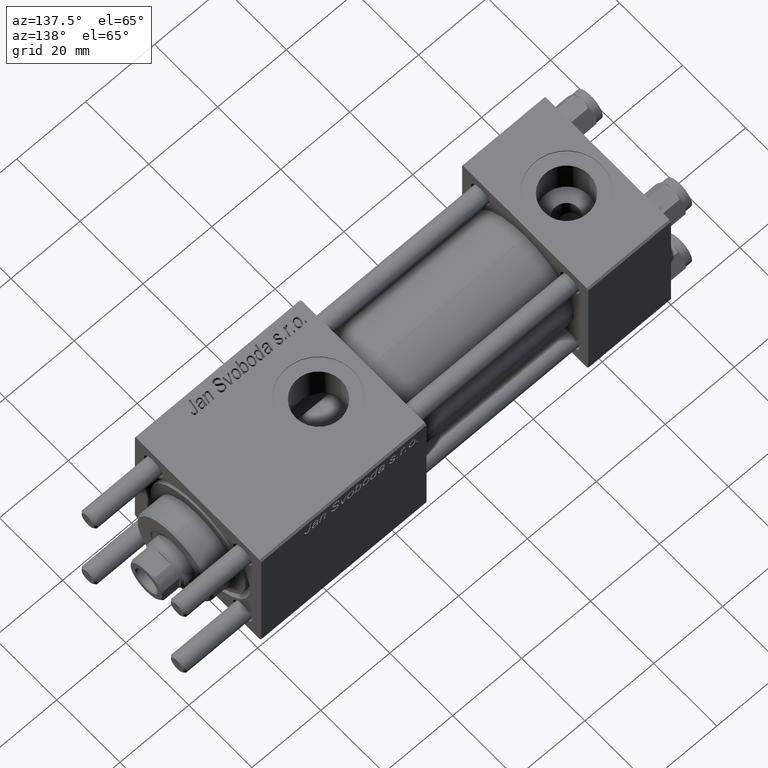
[diagram: clean part render]
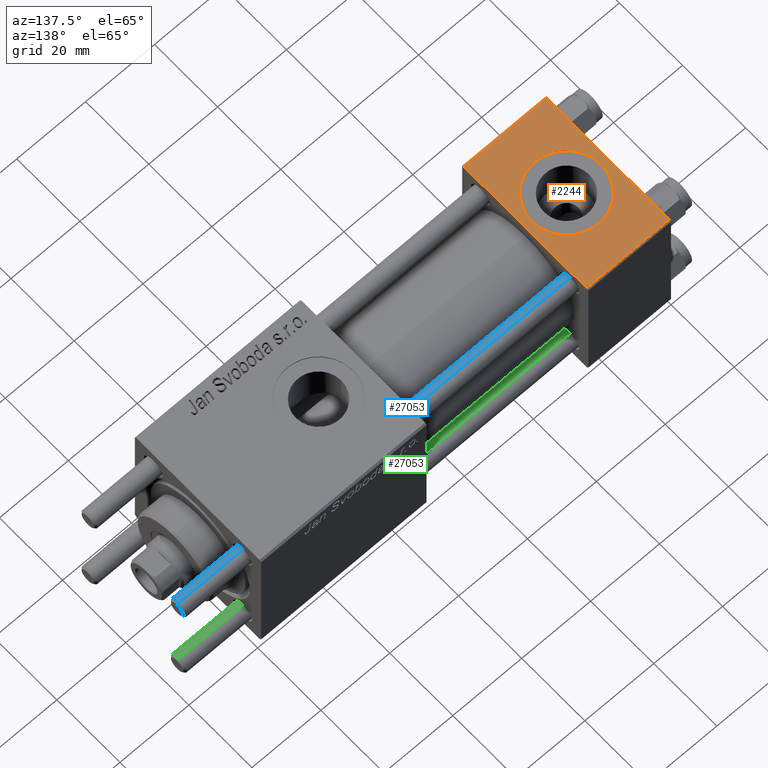
[diagram: same view with three faces highlighted in distinct colors, each labeled with its STEP entity id]
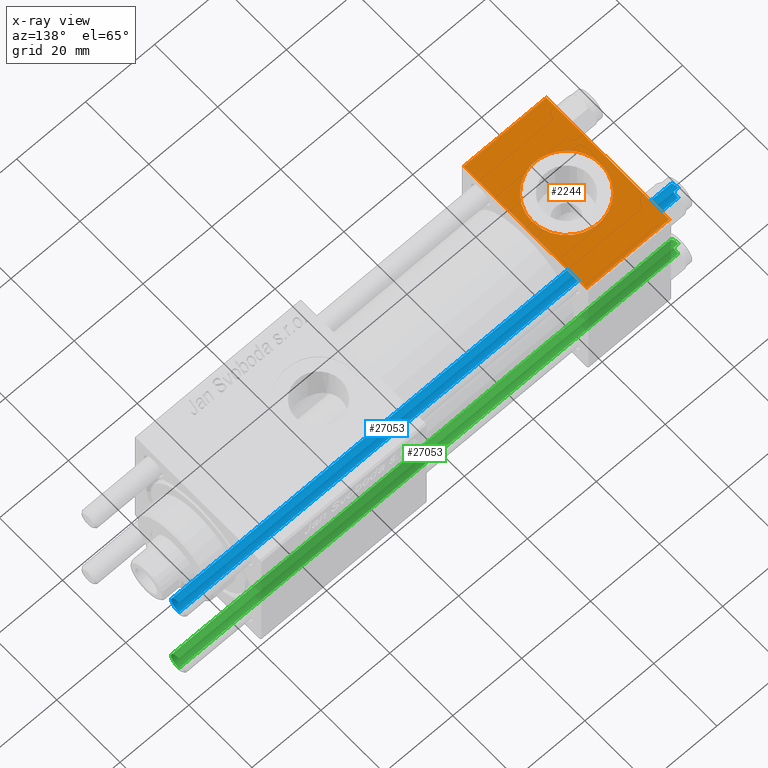
[diagram: x-ray of the same camera — body ghosted, the three highlighted faces saturated]
A machine part, auxiliary view with three faces highlighted in distinct colors.
The next image is the same camera in x-ray (body ghosted, the three faces saturated) — at least one of them is partly hidden behind the body in this view.
Their STEP definitions:

[orange] entity #2244 — the highlighted planar face has unit normal (0, 0, -1).
#2244 = ADVANCED_FACE ( 'NONE', ( #21474, #38375 ), #24639, .F. ) ;
#2397 = CIRCLE ( 'NONE', #10640, 9.999999999999998224 ) ;
#4580 = EDGE_LOOP ( 'NONE', ( #13665, #24686 ) ) ;
#5987 = VERTEX_POINT ( 'NONE', #19932 ) ;
#6838 = ORIENTED_EDGE ( 'NONE', *, *, #27713, .T. ) ;
#7768 = DIRECTION ( 'NONE',  ( 1.000000000000000000, 0.000000000000000000, 0.000000000000000000 ) ) ;
#8727 = VERTEX_POINT ( 'NONE', #10814 ) ;
#8964 = VERTEX_POINT ( 'NONE', #15040 ) ;
#9072 = CARTESIAN_POINT ( 'NONE',  ( 0.000000000000000000, 20.00000000000000000, 20.00000000000000000 ) ) ;
#9590 = CIRCLE ( 'NONE', #41621, 9.999999999999998224 ) ;
#9744 = ORIENTED_EDGE ( 'NONE', *, *, #50889, .F. ) ;
#10640 = AXIS2_PLACEMENT_3D ( 'NONE', #50797, #33565, #7768 ) ;
#10814 = CARTESIAN_POINT ( 'NONE',  ( 24.00000000000000000, -19.49999999999999289, 19.99999999999998934 ) ) ;
#11984 = VERTEX_POINT ( 'NONE', #27802 ) ;
#12292 = CARTESIAN_POINT ( 'NONE',  ( 24.00000000000000000, 20.00000000000000000, 20.00000000000000000 ) ) ;
#12521 = DIRECTION ( 'NONE',  ( 0.000000000000000000, 0.000000000000000000, 1.000000000000000000 ) ) ;
#13026 = CARTESIAN_POINT ( 'NONE',  ( 24.00000000000000000, -19.49999999999999289, 19.99999999999998934 ) ) ;
#13665 = ORIENTED_EDGE ( 'NONE', *, *, #44740, .F. ) ;
#14174 = DIRECTION ( 'NONE',  ( 1.000000000000000000, 0.000000000000000000, 0.000000000000000000 ) ) ;
#14754 = VERTEX_POINT ( 'NONE', #46470 ) ;
#15016 = VECTOR ( 'NONE', #14174, 1000.000000000000000 ) ;
#15040 = CARTESIAN_POINT ( 'NONE',  ( 0.000000000000000000, -19.49999999999999289, 19.99999999999998934 ) ) ;
#15137 = VECTOR ( 'NONE', #16055, 1000.000000000000000 ) ;
#15537 = CARTESIAN_POINT ( 'NONE',  ( 0.000000000000000000, 19.50000000000000000, 20.00000000000000000 ) ) ;
#16055 = DIRECTION ( 'NONE',  ( -1.000000000000000000, 0.000000000000000000, 0.000000000000000000 ) ) ;
#17391 = DIRECTION ( 'NONE',  ( 1.000000000000000000, 0.000000000000000000, 0.000000000000000000 ) ) ;
#19932 = CARTESIAN_POINT ( 'NONE',  ( 22.00000000000000000, 1.540743955509788682E-30, 19.99999999999999645 ) ) ;
#21474 = FACE_BOUND ( 'NONE', #4580, .T. ) ;
#23975 = EDGE_LOOP ( 'NONE', ( #26039, #6838, #9744, #50352 ) ) ;
#24639 = PLANE ( 'NONE',  #50373 ) ;
#24686 = ORIENTED_EDGE ( 'NONE', *, *, #55804, .F. ) ;
#26039 = ORIENTED_EDGE ( 'NONE', *, *, #27438, .T. ) ;
#26565 = LINE ( 'NONE', #9072, #55310 ) ;
#27438 = EDGE_CURVE ( 'NONE', #31375, #8964, #26565, .T. ) ;
#27713 = EDGE_CURVE ( 'NONE', #8964, #8727, #53190, .T. ) ;
#27802 = CARTESIAN_POINT ( 'NONE',  ( 24.00000000000000000, 19.50000000000000000, 20.00000000000000000 ) ) ;
#31375 = VERTEX_POINT ( 'NONE', #15537 ) ;
#33565 = DIRECTION ( 'NONE',  ( 0.000000000000000000, 0.000000000000000000, 1.000000000000000000 ) ) ;
#34070 = CARTESIAN_POINT ( 'NONE',  ( 24.00000000000000000, 20.00000000000000000, 20.00000000000000000 ) ) ;
#37551 = CARTESIAN_POINT ( 'NONE',  ( 0.000000000000000000, 19.50000000000000000, 20.00000000000000000 ) ) ;
#37954 = VECTOR ( 'NONE', #55621, 1000.000000000000000 ) ;
#38375 = FACE_OUTER_BOUND ( 'NONE', #23975, .T. ) ;
#38948 = LINE ( 'NONE', #12292, #37954 ) ;
#41621 = AXIS2_PLACEMENT_3D ( 'NONE', #56692, #12521, #17391 ) ;
#42135 = DIRECTION ( 'NONE',  ( 0.000000000000000000, 2.602085213965210149E-16, -1.000000000000000000 ) ) ;
#44740 = EDGE_CURVE ( 'NONE', #5987, #14754, #9590, .T. ) ;
#46470 = CARTESIAN_POINT ( 'NONE',  ( 2.000000000000003553, 1.224646799147354440E-15, 19.99999999999999645 ) ) ;
#47293 = DIRECTION ( 'NONE',  ( 0.000000000000000000, 1.000000000000000000, 2.602085213965210149E-16 ) ) ;
#50352 = ORIENTED_EDGE ( 'NONE', *, *, #52508, .T. ) ;
#50373 = AXIS2_PLACEMENT_3D ( 'NONE', #34070, #42135, #47293 ) ;
#50797 = CARTESIAN_POINT ( 'NONE',  ( 12.00000000000000000, 1.540743955509788682E-30, 19.99999999999999645 ) ) ;
#50889 = EDGE_CURVE ( 'NONE', #11984, #8727, #38948, .T. ) ;
#52508 = EDGE_CURVE ( 'NONE', #11984, #31375, #55359, .T. ) ;
#53190 = LINE ( 'NONE', #13026, #15016 ) ;
#53255 = DIRECTION ( 'NONE',  ( 0.000000000000000000, -1.000000000000000000, -2.602085213965210149E-16 ) ) ;
#55310 = VECTOR ( 'NONE', #53255, 1000.000000000000000 ) ;
#55359 = LINE ( 'NONE', #37551, #15137 ) ;
#55621 = DIRECTION ( 'NONE',  ( 0.000000000000000000, -1.000000000000000000, -2.602085213965210149E-16 ) ) ;
#55804 = EDGE_CURVE ( 'NONE', #14754, #5987, #2397, .T. ) ;
#56692 = CARTESIAN_POINT ( 'NONE',  ( 12.00000000000000000, 1.540743955509788682E-30, 19.99999999999999645 ) ) ;

[blue] entity #27053 — the highlighted cylindrical surface (edge-blend (fillet) strip) has radius 2.5 mm, axis along (1, -0, -0).
#701 = DIRECTION ( 'NONE',  ( -0.000000000000000000, -0.000000000000000000, 1.000000000000000000 ) ) ;
#874 = CARTESIAN_POINT ( 'NONE',  ( 2.500000000000000000, 3.061616997868383141E-16, 145.5000000000000284 ) ) ;
#2077 = CARTESIAN_POINT ( 'NONE',  ( 2.500000000000000000, 3.061616997868383141E-16, 0.5000000000000559552 ) ) ;
#2105 = DIRECTION ( 'NONE',  ( -0.000000000000000000, -0.000000000000000000, -1.000000000000000000 ) ) ;
#7794 = CARTESIAN_POINT ( 'NONE',  ( 0.000000000000000000, 0.000000000000000000, 146.0000000000000000 ) ) ;
#8441 = DIRECTION ( 'NONE',  ( 1.000000000000000000, 0.000000000000000000, 0.000000000000000000 ) ) ;
#9804 = ORIENTED_EDGE ( 'NONE', *, *, #49978, .T. ) ;
#14050 = AXIS2_PLACEMENT_3D ( 'NONE', #7794, #43071, #25296 ) ;
#14218 = AXIS2_PLACEMENT_3D ( 'NONE', #30508, #701, #8441 ) ;
#14284 = CARTESIAN_POINT ( 'NONE',  ( 2.500000000000000000, 3.061616997868383141E-16, 146.0000000000000000 ) ) ;
#15278 = DIRECTION ( 'NONE',  ( 0.000000000000000000, 0.000000000000000000, -1.000000000000000000 ) ) ;
#15631 = VECTOR ( 'NONE', #2105, 1000.000000000000000 ) ;
#15720 = VERTEX_POINT ( 'NONE', #55301 ) ;
#16893 = AXIS2_PLACEMENT_3D ( 'NONE', #22264, #15278, #50261 ) ;
#18523 = EDGE_CURVE ( 'NONE', #45059, #15720, #45158, .T. ) ;
#20367 = CARTESIAN_POINT ( 'NONE',  ( -2.500000000000000000, 0.000000000000000000, 145.5000000000000284 ) ) ;
#20719 = FACE_OUTER_BOUND ( 'NONE', #53543, .T. ) ;
#22264 = CARTESIAN_POINT ( 'NONE',  ( 0.000000000000000000, 0.000000000000000000, 145.5000000000000284 ) ) ;
#23447 = LINE ( 'NONE', #14284, #25047 ) ;
#24961 = VERTEX_POINT ( 'NONE', #874 ) ;
#25047 = VECTOR ( 'NONE', #40367, 1000.000000000000000 ) ;
#25296 = DIRECTION ( 'NONE',  ( -1.000000000000000000, 0.000000000000000000, 0.000000000000000000 ) ) ;
#27053 = ADVANCED_FACE ( 'NONE', ( #20719 ), #46243, .T. ) ;
#30508 = CARTESIAN_POINT ( 'NONE',  ( 0.000000000000000000, 0.000000000000000000, 0.5000000000000559552 ) ) ;
#30590 = EDGE_CURVE ( 'NONE', #24961, #49937, #23447, .T. ) ;
#31941 = CARTESIAN_POINT ( 'NONE',  ( -2.500000000000000000, 0.000000000000000000, 146.0000000000000000 ) ) ;
#34315 = CIRCLE ( 'NONE', #14218, 2.500000000000000000 ) ;
#40367 = DIRECTION ( 'NONE',  ( -0.000000000000000000, -0.000000000000000000, -1.000000000000000000 ) ) ;
#43071 = DIRECTION ( 'NONE',  ( -0.000000000000000000, -0.000000000000000000, -1.000000000000000000 ) ) ;
#45059 = VERTEX_POINT ( 'NONE', #20367 ) ;
#45158 = LINE ( 'NONE', #31941, #15631 ) ;
#46137 = EDGE_CURVE ( 'NONE', #15720, #49937, #34315, .T. ) ;
#46168 = CIRCLE ( 'NONE', #16893, 2.500000000000000000 ) ;
#46243 = CYLINDRICAL_SURFACE ( 'NONE', #14050, 2.500000000000000000 ) ;
#49937 = VERTEX_POINT ( 'NONE', #2077 ) ;
#49978 = EDGE_CURVE ( 'NONE', #24961, #45059, #46168, .T. ) ;
#50261 = DIRECTION ( 'NONE',  ( 1.000000000000000000, 0.000000000000000000, 0.000000000000000000 ) ) ;
#53326 = ORIENTED_EDGE ( 'NONE', *, *, #30590, .F. ) ;
#53543 = EDGE_LOOP ( 'NONE', ( #53326, #9804, #56008, #53916 ) ) ;
#53916 = ORIENTED_EDGE ( 'NONE', *, *, #46137, .T. ) ;
#55301 = CARTESIAN_POINT ( 'NONE',  ( -2.500000000000000000, 0.000000000000000000, 0.5000000000000559552 ) ) ;
#56008 = ORIENTED_EDGE ( 'NONE', *, *, #18523, .T. ) ;

[green] entity #27053 — the highlighted cylindrical surface (edge-blend (fillet) strip) has radius 2.5 mm, axis along (-1, -0, 0).
#701 = DIRECTION ( 'NONE',  ( -0.000000000000000000, -0.000000000000000000, 1.000000000000000000 ) ) ;
#874 = CARTESIAN_POINT ( 'NONE',  ( 2.500000000000000000, 3.061616997868383141E-16, 145.5000000000000284 ) ) ;
#2077 = CARTESIAN_POINT ( 'NONE',  ( 2.500000000000000000, 3.061616997868383141E-16, 0.5000000000000559552 ) ) ;
#2105 = DIRECTION ( 'NONE',  ( -0.000000000000000000, -0.000000000000000000, -1.000000000000000000 ) ) ;
#7794 = CARTESIAN_POINT ( 'NONE',  ( 0.000000000000000000, 0.000000000000000000, 146.0000000000000000 ) ) ;
#8441 = DIRECTION ( 'NONE',  ( 1.000000000000000000, 0.000000000000000000, 0.000000000000000000 ) ) ;
#9804 = ORIENTED_EDGE ( 'NONE', *, *, #49978, .T. ) ;
#14050 = AXIS2_PLACEMENT_3D ( 'NONE', #7794, #43071, #25296 ) ;
#14218 = AXIS2_PLACEMENT_3D ( 'NONE', #30508, #701, #8441 ) ;
#14284 = CARTESIAN_POINT ( 'NONE',  ( 2.500000000000000000, 3.061616997868383141E-16, 146.0000000000000000 ) ) ;
#15278 = DIRECTION ( 'NONE',  ( 0.000000000000000000, 0.000000000000000000, -1.000000000000000000 ) ) ;
#15631 = VECTOR ( 'NONE', #2105, 1000.000000000000000 ) ;
#15720 = VERTEX_POINT ( 'NONE', #55301 ) ;
#16893 = AXIS2_PLACEMENT_3D ( 'NONE', #22264, #15278, #50261 ) ;
#18523 = EDGE_CURVE ( 'NONE', #45059, #15720, #45158, .T. ) ;
#20367 = CARTESIAN_POINT ( 'NONE',  ( -2.500000000000000000, 0.000000000000000000, 145.5000000000000284 ) ) ;
#20719 = FACE_OUTER_BOUND ( 'NONE', #53543, .T. ) ;
#22264 = CARTESIAN_POINT ( 'NONE',  ( 0.000000000000000000, 0.000000000000000000, 145.5000000000000284 ) ) ;
#23447 = LINE ( 'NONE', #14284, #25047 ) ;
#24961 = VERTEX_POINT ( 'NONE', #874 ) ;
#25047 = VECTOR ( 'NONE', #40367, 1000.000000000000000 ) ;
#25296 = DIRECTION ( 'NONE',  ( -1.000000000000000000, 0.000000000000000000, 0.000000000000000000 ) ) ;
#27053 = ADVANCED_FACE ( 'NONE', ( #20719 ), #46243, .T. ) ;
#30508 = CARTESIAN_POINT ( 'NONE',  ( 0.000000000000000000, 0.000000000000000000, 0.5000000000000559552 ) ) ;
#30590 = EDGE_CURVE ( 'NONE', #24961, #49937, #23447, .T. ) ;
#31941 = CARTESIAN_POINT ( 'NONE',  ( -2.500000000000000000, 0.000000000000000000, 146.0000000000000000 ) ) ;
#34315 = CIRCLE ( 'NONE', #14218, 2.500000000000000000 ) ;
#40367 = DIRECTION ( 'NONE',  ( -0.000000000000000000, -0.000000000000000000, -1.000000000000000000 ) ) ;
#43071 = DIRECTION ( 'NONE',  ( -0.000000000000000000, -0.000000000000000000, -1.000000000000000000 ) ) ;
#45059 = VERTEX_POINT ( 'NONE', #20367 ) ;
#45158 = LINE ( 'NONE', #31941, #15631 ) ;
#46137 = EDGE_CURVE ( 'NONE', #15720, #49937, #34315, .T. ) ;
#46168 = CIRCLE ( 'NONE', #16893, 2.500000000000000000 ) ;
#46243 = CYLINDRICAL_SURFACE ( 'NONE', #14050, 2.500000000000000000 ) ;
#49937 = VERTEX_POINT ( 'NONE', #2077 ) ;
#49978 = EDGE_CURVE ( 'NONE', #24961, #45059, #46168, .T. ) ;
#50261 = DIRECTION ( 'NONE',  ( 1.000000000000000000, 0.000000000000000000, 0.000000000000000000 ) ) ;
#53326 = ORIENTED_EDGE ( 'NONE', *, *, #30590, .F. ) ;
#53543 = EDGE_LOOP ( 'NONE', ( #53326, #9804, #56008, #53916 ) ) ;
#53916 = ORIENTED_EDGE ( 'NONE', *, *, #46137, .T. ) ;
#55301 = CARTESIAN_POINT ( 'NONE',  ( -2.500000000000000000, 0.000000000000000000, 0.5000000000000559552 ) ) ;
#56008 = ORIENTED_EDGE ( 'NONE', *, *, #18523, .T. ) ;